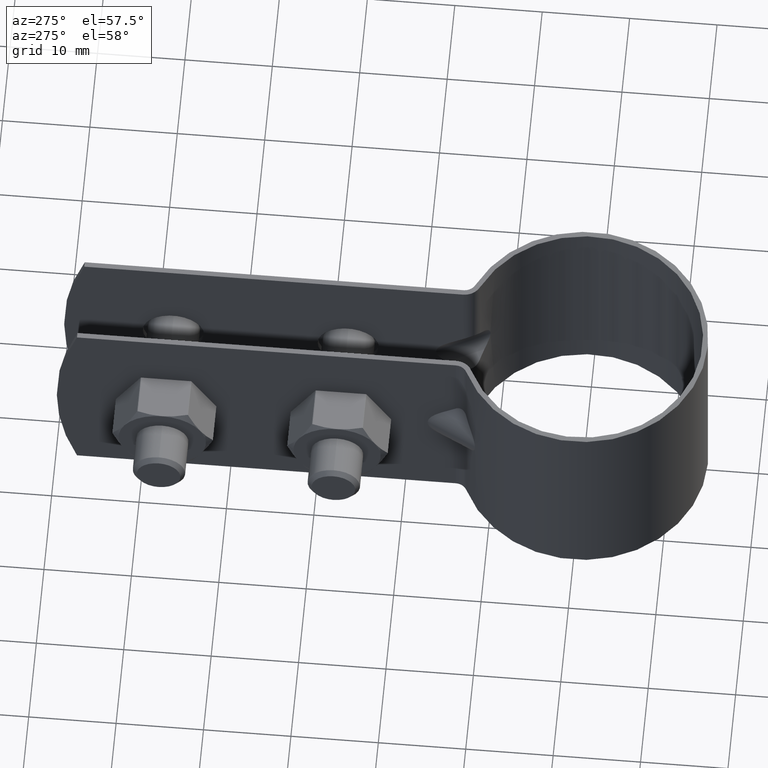
[diagram: clean part render]
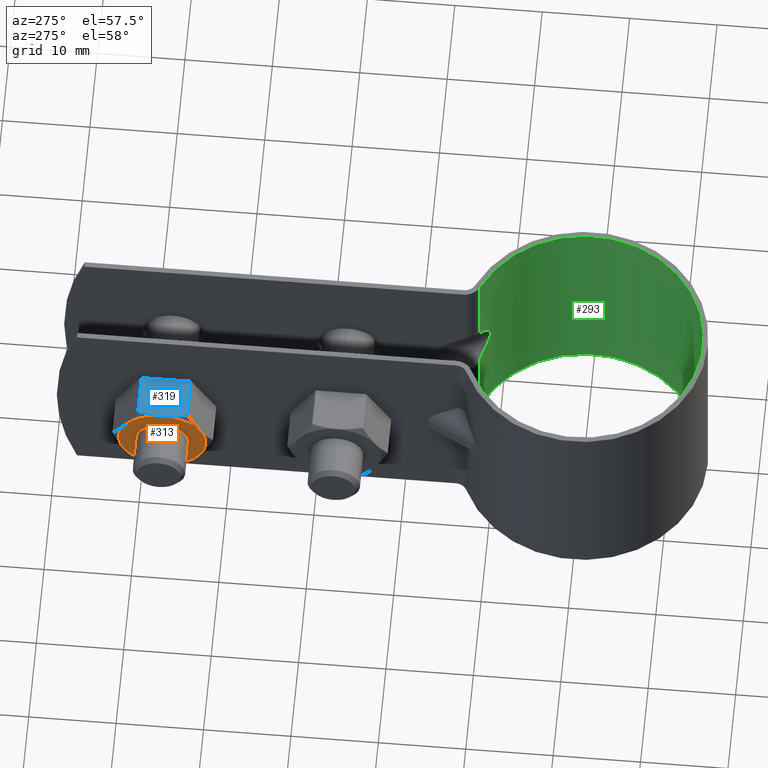
[diagram: same view with three faces highlighted in distinct colors, each labeled with its STEP entity id]
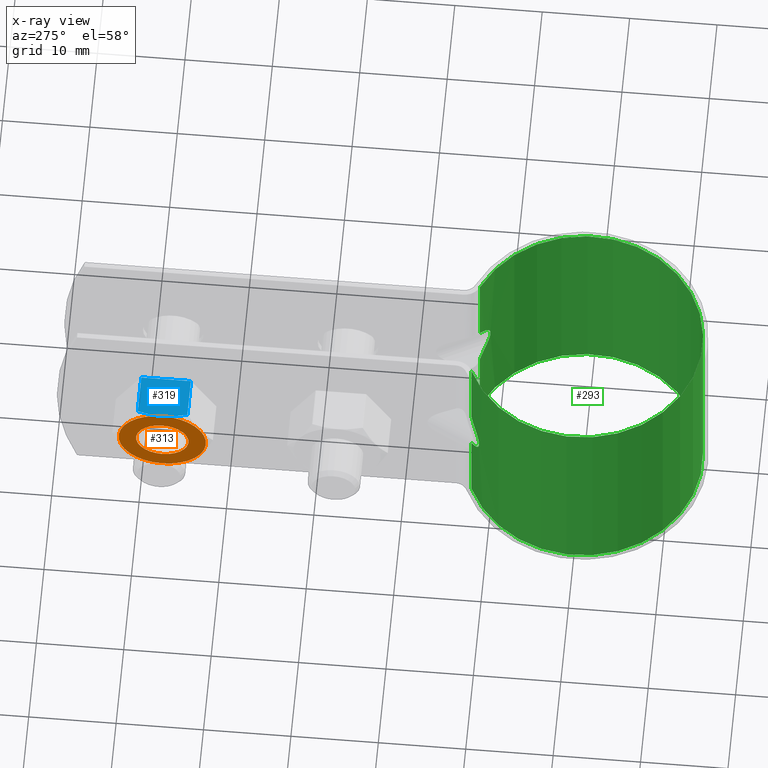
[diagram: x-ray of the same camera — body ghosted, the three highlighted faces saturated]
A machine part, auxiliary view with three faces highlighted in distinct colors.
The next image is the same camera in x-ray (body ghosted, the three faces saturated) — at least one of them is partly hidden behind the body in this view.
Their STEP definitions:

[orange] entity #313 — the highlighted planar face has unit normal (1, 0, 0).
#313 = ADVANCED_FACE( '', ( #477, #478 ), #479, .F. );
#477 = FACE_OUTER_BOUND( '', #709, .T. );
#478 = FACE_BOUND( '', #710, .T. );
#479 = PLANE( '', #711 );
#709 = EDGE_LOOP( '', ( #1202, #1203, #1204, #1205, #1206, #1207 ) );
#710 = EDGE_LOOP( '', ( #1208 ) );
#711 = AXIS2_PLACEMENT_3D( '', #1209, #1210, #1211 );
#1202 = ORIENTED_EDGE( '', *, *, #1733, .F. );
#1203 = ORIENTED_EDGE( '', *, *, #1734, .F. );
#1204 = ORIENTED_EDGE( '', *, *, #1735, .F. );
#1205 = ORIENTED_EDGE( '', *, *, #1736, .F. );
#1206 = ORIENTED_EDGE( '', *, *, #1731, .F. );
#1207 = ORIENTED_EDGE( '', *, *, #1737, .F. );
#1208 = ORIENTED_EDGE( '', *, *, #1738, .T. );
#1209 = CARTESIAN_POINT( '', ( -10.1000000000000, 47.3339393796296, -8.67361737988408E-016 ) );
#1210 = DIRECTION( '', ( 1.00000000000000, 0.000000000000000, 0.000000000000000 ) );
#1211 = DIRECTION( '', ( 0.000000000000000, 0.000000000000000, -1.00000000000000 ) );
#1731 = EDGE_CURVE( '', #2049, #2051, #2052, .T. );
#1733 = EDGE_CURVE( '', #2054, #2055, #2056, .T. );
#1734 = EDGE_CURVE( '', #2057, #2054, #2058, .T. );
#1735 = EDGE_CURVE( '', #2059, #2057, #2060, .T. );
#1736 = EDGE_CURVE( '', #2051, #2059, #2061, .T. );
#1737 = EDGE_CURVE( '', #2055, #2049, #2062, .T. );
#1738 = EDGE_CURVE( '', #2063, #2063, #2064, .T. );
#2049 = VERTEX_POINT( '', #2579 );
#2051 = VERTEX_POINT( '', #2586 );
#2052 = CIRCLE( '', #2587, 5.00000000000000 );
#2054 = VERTEX_POINT( '', #2596 );
#2055 = VERTEX_POINT( '', #2597 );
#2056 = CIRCLE( '', #2598, 5.00000000000000 );
#2057 = VERTEX_POINT( '', #2599 );
#2058 = CIRCLE( '', #2600, 5.00000000000000 );
#2059 = VERTEX_POINT( '', #2601 );
#2060 = CIRCLE( '', #2602, 5.00000000000000 );
#2061 = CIRCLE( '', #2603, 5.00000000000000 );
#2062 = CIRCLE( '', #2604, 5.00000000000000 );
#2063 = VERTEX_POINT( '', #2605 );
#2064 = CIRCLE( '', #2606, 3.00000000000000 );
#2579 = CARTESIAN_POINT( '', ( -10.1000000000000, 47.3339393796296, 5.00000000000000 ) );
#2586 = CARTESIAN_POINT( '', ( -10.1000000000000, 43.0038123607074, 2.50000000000000 ) );
#2587 = AXIS2_PLACEMENT_3D( '', #3164, #3165, #3166 );
#2596 = CARTESIAN_POINT( '', ( -10.1000000000000, 51.6640663985518, -2.50000000000000 ) );
#2597 = CARTESIAN_POINT( '', ( -10.1000000000000, 51.6640663985518, 2.50000000000000 ) );
#2598 = AXIS2_PLACEMENT_3D( '', #3167, #3168, #3169 );
#2599 = CARTESIAN_POINT( '', ( -10.1000000000000, 47.3339393796296, -5.00000000000000 ) );
#2600 = AXIS2_PLACEMENT_3D( '', #3170, #3171, #3172 );
#2601 = CARTESIAN_POINT( '', ( -10.1000000000000, 43.0038123607074, -2.50000000000000 ) );
#2602 = AXIS2_PLACEMENT_3D( '', #3173, #3174, #3175 );
#2603 = AXIS2_PLACEMENT_3D( '', #3176, #3177, #3178 );
#2604 = AXIS2_PLACEMENT_3D( '', #3179, #3180, #3181 );
#2605 = CARTESIAN_POINT( '', ( -10.1000000000000, 47.3339393796296, -3.00000000000000 ) );
#2606 = AXIS2_PLACEMENT_3D( '', #3182, #3183, #3184 );
#3164 = CARTESIAN_POINT( '', ( -10.1000000000000, 47.3339393796296, -8.67361737988408E-016 ) );
#3165 = DIRECTION( '', ( 1.00000000000000, 0.000000000000000, 0.000000000000000 ) );
#3166 = DIRECTION( '', ( 0.000000000000000, 0.000000000000000, -1.00000000000000 ) );
#3167 = CARTESIAN_POINT( '', ( -10.1000000000000, 47.3339393796296, -8.67361737988408E-016 ) );
#3168 = DIRECTION( '', ( 1.00000000000000, 0.000000000000000, 0.000000000000000 ) );
#3169 = DIRECTION( '', ( 0.000000000000000, 0.000000000000000, -1.00000000000000 ) );
#3170 = CARTESIAN_POINT( '', ( -10.1000000000000, 47.3339393796296, -8.67361737988408E-016 ) );
#3171 = DIRECTION( '', ( 1.00000000000000, 0.000000000000000, 0.000000000000000 ) );
#3172 = DIRECTION( '', ( 0.000000000000000, 0.000000000000000, -1.00000000000000 ) );
#3173 = CARTESIAN_POINT( '', ( -10.1000000000000, 47.3339393796296, -8.67361737988408E-016 ) );
#3174 = DIRECTION( '', ( 1.00000000000000, 0.000000000000000, 0.000000000000000 ) );
#3175 = DIRECTION( '', ( 0.000000000000000, 0.000000000000000, -1.00000000000000 ) );
#3176 = CARTESIAN_POINT( '', ( -10.1000000000000, 47.3339393796296, -8.67361737988408E-016 ) );
#3177 = DIRECTION( '', ( 1.00000000000000, 0.000000000000000, 0.000000000000000 ) );
#3178 = DIRECTION( '', ( 0.000000000000000, 0.000000000000000, -1.00000000000000 ) );
#3179 = CARTESIAN_POINT( '', ( -10.1000000000000, 47.3339393796296, -8.67361737988408E-016 ) );
#3180 = DIRECTION( '', ( 1.00000000000000, 0.000000000000000, 0.000000000000000 ) );
#3181 = DIRECTION( '', ( 0.000000000000000, 0.000000000000000, -1.00000000000000 ) );
#3182 = CARTESIAN_POINT( '', ( -10.1000000000000, 47.3339393796296, -8.67361737988408E-016 ) );
#3183 = DIRECTION( '', ( 1.00000000000000, 0.000000000000000, 0.000000000000000 ) );
#3184 = DIRECTION( '', ( 0.000000000000000, 0.000000000000000, -1.00000000000000 ) );

[blue] entity #319 — the highlighted planar face has unit normal (0, 0, -1).
#319 = ADVANCED_FACE( '', ( #491 ), #492, .F. );
#491 = FACE_OUTER_BOUND( '', #723, .T. );
#492 = PLANE( '', #724 );
#723 = EDGE_LOOP( '', ( #1257, #1258, #1259, #1260, #1261 ) );
#724 = AXIS2_PLACEMENT_3D( '', #1262, #1263, #1264 );
#1257 = ORIENTED_EDGE( '', *, *, #1763, .F. );
#1258 = ORIENTED_EDGE( '', *, *, #1730, .F. );
#1259 = ORIENTED_EDGE( '', *, *, #1764, .F. );
#1260 = ORIENTED_EDGE( '', *, *, #1747, .F. );
#1261 = ORIENTED_EDGE( '', *, *, #1758, .F. );
#1262 = CARTESIAN_POINT( '', ( -5.10000000000002, 50.2206907255777, 5.00000000000000 ) );
#1263 = DIRECTION( '', ( 0.000000000000000, 0.000000000000000, -1.00000000000000 ) );
#1264 = DIRECTION( '', ( -1.00000000000000, 0.000000000000000, 0.000000000000000 ) );
#1730 = EDGE_CURVE( '', #2046, #2049, #2050, .T. );
#1747 = EDGE_CURVE( '', #2078, #2080, #2081, .T. );
#1758 = EDGE_CURVE( '', #2099, #2078, #2101, .T. );
#1763 = EDGE_CURVE( '', #2049, #2099, #2108, .T. );
#1764 = EDGE_CURVE( '', #2080, #2046, #2109, .F. );
#2046 = VERTEX_POINT( '', #2576 );
#2049 = VERTEX_POINT( '', #2579 );
#2050 = B_SPLINE_CURVE_WITH_KNOTS( '', 3, ( #2580, #2581, #2582, #2583, #2584, #2585 ), .UNSPECIFIED., .F., .F., ( 4, 2, 4 ), ( 0.00519725619092114, 0.00663292719463914, 0.00806859819835714 ), .UNSPECIFIED. );
#2078 = VERTEX_POINT( '', #2633 );
#2080 = VERTEX_POINT( '', #2635 );
#2081 = LINE( '', #2636, #2637 );
#2099 = VERTEX_POINT( '', #2659 );
#2101 = LINE( '', #2661, #2662 );
#2108 = B_SPLINE_CURVE_WITH_KNOTS( '', 3, ( #2680, #2681, #2682, #2683, #2684, #2685 ), .UNSPECIFIED., .F., .F., ( 4, 2, 4 ), ( 0.00806859819835714, 0.00950497228174471, 0.0109413463651323 ), .UNSPECIFIED. );
#2109 = LINE( '', #2686, #2687 );
#2576 = CARTESIAN_POINT( '', ( -9.66698729810780, 44.4944852067294, 5.00000000000000 ) );
#2579 = CARTESIAN_POINT( '', ( -10.1000000000000, 47.3339393796296, 5.00000000000000 ) );
#2580 = CARTESIAN_POINT( '', ( -9.66698729810781, 44.4944852067294, 5.00000000000000 ) );
#2581 = CARTESIAN_POINT( '', ( -9.79876289079438, 44.9566837649864, 5.00000000000000 ) );
#2582 = CARTESIAN_POINT( '', ( -9.90898038823823, 45.4298194141142, 5.00000000000000 ) );
#2583 = CARTESIAN_POINT( '', ( -10.0594851340825, 46.3777421907105, 5.00000000000000 ) );
#2584 = CARTESIAN_POINT( '', ( -10.1000000000000, 46.8543168417580, 5.00000000000000 ) );
#2585 = CARTESIAN_POINT( '', ( -10.1000000000000, 47.3339393796296, 5.00000000000000 ) );
#2633 = CARTESIAN_POINT( '', ( -5.10000000000002, 50.1733935525297, 5.00000000000000 ) );
#2635 = CARTESIAN_POINT( '', ( -5.10000000000002, 44.4944852067294, 5.00000000000000 ) );
#2636 = CARTESIAN_POINT( '', ( -5.10000000000002, 53.0839393796296, 5.00000000000000 ) );
#2637 = VECTOR( '', #3197, 1000.00000000000 );
#2659 = CARTESIAN_POINT( '', ( -9.66698729810780, 50.1733935525297, 5.00000000000000 ) );
#2661 = CARTESIAN_POINT( '', ( -5.10000000000002, 50.1733935525297, 5.00000000000000 ) );
#2662 = VECTOR( '', #3220, 1000.00000000000 );
#2680 = CARTESIAN_POINT( '', ( -10.1000000000000, 47.3339393796296, 5.00000000000000 ) );
#2681 = CARTESIAN_POINT( '', ( -10.1000000000000, 47.8137967992077, 5.00000000000000 ) );
#2682 = CARTESIAN_POINT( '', ( -10.0583898630217, 48.3001786176977, 5.00000000000000 ) );
#2683 = CARTESIAN_POINT( '', ( -9.90676947593068, 49.2487710432568, 5.00000000000000 ) );
#2684 = CARTESIAN_POINT( '', ( -9.79793774197780, 49.7140891766141, 5.00000000000000 ) );
#2685 = CARTESIAN_POINT( '', ( -9.66698729810781, 50.1733935525297, 5.00000000000000 ) );
#2686 = CARTESIAN_POINT( '', ( -5.10000000000002, 44.4944852067294, 5.00000000000000 ) );
#2687 = VECTOR( '', #3225, 1000.00000000000 );
#3197 = DIRECTION( '', ( 0.000000000000000, -1.00000000000000, 0.000000000000000 ) );
#3220 = DIRECTION( '', ( 1.00000000000000, 0.000000000000000, 0.000000000000000 ) );
#3225 = DIRECTION( '', ( 1.00000000000000, 0.000000000000000, 0.000000000000000 ) );

[green] entity #293 — the highlighted cylindrical surface (partial cylindrical patch) has radius 13.6 mm, axis along (0, 0, -1).
#293 = ADVANCED_FACE( '', ( #432 ), #433, .F. );
#432 = FACE_OUTER_BOUND( '', #664, .T. );
#433 = CYLINDRICAL_SURFACE( '', #665, 13.6000000000000 );
#664 = EDGE_LOOP( '', ( #1042, #1043, #1044, #1045, #1046, #1047, #1048, #1049, #1050, #1051, #1052, #1053 ) );
#665 = AXIS2_PLACEMENT_3D( '', #1054, #1055, #1056 );
#1042 = ORIENTED_EDGE( '', *, *, #1658, .F. );
#1043 = ORIENTED_EDGE( '', *, *, #1619, .F. );
#1044 = ORIENTED_EDGE( '', *, *, #1629, .F. );
#1045 = ORIENTED_EDGE( '', *, *, #1699, .T. );
#1046 = ORIENTED_EDGE( '', *, *, #1668, .T. );
#1047 = ORIENTED_EDGE( '', *, *, #1671, .T. );
#1048 = ORIENTED_EDGE( '', *, *, #1663, .T. );
#1049 = ORIENTED_EDGE( '', *, *, #1700, .T. );
#1050 = ORIENTED_EDGE( '', *, *, #1701, .T. );
#1051 = ORIENTED_EDGE( '', *, *, #1697, .F. );
#1052 = ORIENTED_EDGE( '', *, *, #1655, .F. );
#1053 = ORIENTED_EDGE( '', *, *, #1661, .F. );
#1054 = CARTESIAN_POINT( '', ( 0.000000000000000, 0.000000000000000, -12.5000000000000 ) );
#1055 = DIRECTION( '', ( 0.000000000000000, 0.000000000000000, -1.00000000000000 ) );
#1056 = DIRECTION( '', ( -1.00000000000000, 6.06692130572647E-017, 0.000000000000000 ) );
#1619 = EDGE_CURVE( '', #1859, #1855, #1861, .T. );
#1629 = EDGE_CURVE( '', #1879, #1859, #1881, .T. );
#1655 = EDGE_CURVE( '', #1923, #1926, #1927, .F. );
#1658 = EDGE_CURVE( '', #1855, #1931, #1932, .F. );
#1661 = EDGE_CURVE( '', #1931, #1923, #1936, .T. );
#1663 = EDGE_CURVE( '', #1938, #1939, #1940, .F. );
#1668 = EDGE_CURVE( '', #1949, #1946, #1950, .F. );
#1671 = EDGE_CURVE( '', #1946, #1938, #1954, .T. );
#1697 = EDGE_CURVE( '', #1926, #1996, #1997, .T. );
#1699 = EDGE_CURVE( '', #1879, #1949, #1999, .T. );
#1700 = EDGE_CURVE( '', #1939, #2000, #2001, .T. );
#1701 = EDGE_CURVE( '', #2000, #1996, #2002, .T. );
#1855 = VERTEX_POINT( '', #2255 );
#1859 = VERTEX_POINT( '', #2260 );
#1861 = LINE( '', #2262, #2263 );
#1879 = VERTEX_POINT( '', #2286 );
#1881 = CIRCLE( '', #2288, 13.6000000000000 );
#1923 = VERTEX_POINT( '', #2376 );
#1926 = VERTEX_POINT( '', #2380 );
#1927 = ELLIPSE( '', #2381, 23.7108764204469, 13.6000000000000 );
#1931 = VERTEX_POINT( '', #2386 );
#1932 = ELLIPSE( '', #2387, 23.7108764204469, 13.6000000000000 );
#1936 = B_SPLINE_CURVE_WITH_KNOTS( '', 3, ( #2393, #2394, #2395, #2396, #2397, #2398, #2399, #2400, #2401, #2402, #2403, #2404, #2405, #2406, #2407, #2408, #2409, #2410 ), .UNSPECIFIED., .F., .F., ( 4, 2, 2, 2, 2, 2, 2, 2, 4 ), ( 1.46700206458118E-017, 0.000584896420978064, 0.00116979284195611, 0.00175468926293416, 0.00233958568391221, 0.00292448210489026, 0.00350937852586831, 0.00409427494684636, 0.00467917136782441 ), .UNSPECIFIED. );
#1938 = VERTEX_POINT( '', #2412 );
#1939 = VERTEX_POINT( '', #2413 );
#1940 = ELLIPSE( '', #2414, 23.7108764204469, 13.6000000000000 );
#1946 = VERTEX_POINT( '', #2422 );
#1949 = VERTEX_POINT( '', #2426 );
#1950 = ELLIPSE( '', #2427, 23.7108764204469, 13.6000000000000 );
#1954 = B_SPLINE_CURVE_WITH_KNOTS( '', 3, ( #2432, #2433, #2434, #2435, #2436, #2437, #2438, #2439, #2440, #2441, #2442, #2443, #2444, #2445, #2446, #2447, #2448, #2449 ), .UNSPECIFIED., .F., .F., ( 4, 2, 2, 2, 2, 2, 2, 2, 4 ), ( 1.46700206458118E-017, 0.000584896420978064, 0.00116979284195611, 0.00175468926293416, 0.00233958568391221, 0.00292448210489026, 0.00350937852586831, 0.00409427494684636, 0.00467917136782441 ), .UNSPECIFIED. );
#1996 = VERTEX_POINT( '', #2501 );
#1997 = LINE( '', #2502, #2503 );
#1999 = LINE( '', #2505, #2506 );
#2000 = VERTEX_POINT( '', #2507 );
#2001 = LINE( '', #2508, #2509 );
#2002 = CIRCLE( '', #2510, 13.6000000000000 );
#2255 = CARTESIAN_POINT( '', ( 5.66666666666667, 12.3632070632538, -2.77308587638104 ) );
#2260 = CARTESIAN_POINT( '', ( 5.66666666666666, 12.3632070632538, -12.5000000000000 ) );
#2262 = CARTESIAN_POINT( '', ( 5.66666666666666, 12.3632070632538, -12.5000000000000 ) );
#2263 = VECTOR( '', #2965, 1000.00000000000 );
#2286 = CARTESIAN_POINT( '', ( -5.66666666666667, 12.3632070632538, -12.5000000000000 ) );
#2288 = AXIS2_PLACEMENT_3D( '', #2983, #2984, #2985 );
#2376 = CARTESIAN_POINT( '', ( 6.53586213185873, 11.9265462810210, 1.95015988359353 ) );
#2380 = CARTESIAN_POINT( '', ( 5.66666666666666, 12.3632070632538, 2.77308587638101 ) );
#2381 = AXIS2_PLACEMENT_3D( '', #3029, #3030, #3031 );
#2386 = CARTESIAN_POINT( '', ( 6.53586213185867, 11.9265462810210, -1.95015988359359 ) );
#2387 = AXIS2_PLACEMENT_3D( '', #3036, #3037, #3038 );
#2393 = CARTESIAN_POINT( '', ( 6.53586213185871, 11.9265462810210, -1.95015988359361 ) );
#2394 = CARTESIAN_POINT( '', ( 6.67009651833289, 11.8529845454877, -1.82704297847877 ) );
#2395 = CARTESIAN_POINT( '', ( 6.79610177893152, 11.7809680969336, -1.69624043476567 ) );
#2396 = CARTESIAN_POINT( '', ( 7.02852298233976, 11.6437997826004, -1.41477434183330 ) );
#2397 = CARTESIAN_POINT( '', ( 7.13580033444201, 11.5780897281714, -1.26288260901856 ) );
#2398 = CARTESIAN_POINT( '', ( 7.31989769528371, 11.4625872252817, -0.936381958474869 ) );
#2399 = CARTESIAN_POINT( '', ( 7.39605316070714, 11.4132633302297, -0.763664600269284 ) );
#2400 = CARTESIAN_POINT( '', ( 7.50425963487865, 11.3424102171233, -0.390706598991286 ) );
#2401 = CARTESIAN_POINT( '', ( 7.53357038606242, 11.3227786890182, -0.198021643271265 ) );
#2402 = CARTESIAN_POINT( '', ( 7.53364921555405, 11.3227262397014, 0.197222903658054 ) );
#2403 = CARTESIAN_POINT( '', ( 7.50440397800629, 11.3423144164811, 0.389995176648634 ) );
#2404 = CARTESIAN_POINT( '', ( 7.39628686221077, 11.4131115844593, 0.763072260344447 ) );
#2405 = CARTESIAN_POINT( '', ( 7.31996323132782, 11.4625405341955, 0.936125778861990 ) );
#2406 = CARTESIAN_POINT( '', ( 7.13673789240971, 11.5775070486314, 1.26135901593015 ) );
#2407 = CARTESIAN_POINT( '', ( 7.02914109822047, 11.6434296857302, 1.41397552560190 ) );
#2408 = CARTESIAN_POINT( '', ( 6.79627352742367, 11.7808720205966, 1.69608254140717 ) );
#2409 = CARTESIAN_POINT( '', ( 6.67012729640709, 11.8529676788069, 1.82701474948806 ) );
#2410 = CARTESIAN_POINT( '', ( 6.53586213185873, 11.9265462810210, 1.95015988359353 ) );
#2412 = CARTESIAN_POINT( '', ( -6.53586213185873, 11.9265462810210, 1.95015988359353 ) );
#2413 = CARTESIAN_POINT( '', ( -5.66666666666667, 12.3632070632538, 2.77308587638100 ) );
#2414 = AXIS2_PLACEMENT_3D( '', #3044, #3045, #3046 );
#2422 = CARTESIAN_POINT( '', ( -6.53586213185867, 11.9265462810210, -1.95015988359359 ) );
#2426 = CARTESIAN_POINT( '', ( -5.66666666666667, 12.3632070632538, -2.77308587638104 ) );
#2427 = AXIS2_PLACEMENT_3D( '', #3053, #3054, #3055 );
#2432 = CARTESIAN_POINT( '', ( -6.53586213185871, 11.9265462810210, -1.95015988359361 ) );
#2433 = CARTESIAN_POINT( '', ( -6.67009651833289, 11.8529845454877, -1.82704297847877 ) );
#2434 = CARTESIAN_POINT( '', ( -6.79610177893152, 11.7809680969336, -1.69624043476567 ) );
#2435 = CARTESIAN_POINT( '', ( -7.02852298233976, 11.6437997826004, -1.41477434183330 ) );
#2436 = CARTESIAN_POINT( '', ( -7.13580033444201, 11.5780897281714, -1.26288260901856 ) );
#2437 = CARTESIAN_POINT( '', ( -7.31989769528371, 11.4625872252817, -0.936381958474869 ) );
#2438 = CARTESIAN_POINT( '', ( -7.39605316070714, 11.4132633302297, -0.763664600269284 ) );
#2439 = CARTESIAN_POINT( '', ( -7.50425963487865, 11.3424102171233, -0.390706598991286 ) );
#2440 = CARTESIAN_POINT( '', ( -7.53357038606242, 11.3227786890182, -0.198021643271265 ) );
#2441 = CARTESIAN_POINT( '', ( -7.53364921555405, 11.3227262397014, 0.197222903658054 ) );
#2442 = CARTESIAN_POINT( '', ( -7.50440397800629, 11.3423144164811, 0.389995176648634 ) );
#2443 = CARTESIAN_POINT( '', ( -7.39628686221077, 11.4131115844593, 0.763072260344447 ) );
#2444 = CARTESIAN_POINT( '', ( -7.31996323132782, 11.4625405341955, 0.936125778861990 ) );
#2445 = CARTESIAN_POINT( '', ( -7.13673789240971, 11.5775070486314, 1.26135901593015 ) );
#2446 = CARTESIAN_POINT( '', ( -7.02914109822047, 11.6434296857302, 1.41397552560190 ) );
#2447 = CARTESIAN_POINT( '', ( -6.79627352742367, 11.7808720205966, 1.69608254140717 ) );
#2448 = CARTESIAN_POINT( '', ( -6.67012729640709, 11.8529676788069, 1.82701474948806 ) );
#2449 = CARTESIAN_POINT( '', ( -6.53586213185873, 11.9265462810210, 1.95015988359353 ) );
#2501 = CARTESIAN_POINT( '', ( 5.66666666666666, 12.3632070632538, 12.5000000000000 ) );
#2502 = CARTESIAN_POINT( '', ( 5.66666666666666, 12.3632070632538, -12.5000000000000 ) );
#2503 = VECTOR( '', #3115, 1000.00000000000 );
#2505 = CARTESIAN_POINT( '', ( -5.66666666666667, 12.3632070632538, -12.5000000000000 ) );
#2506 = VECTOR( '', #3119, 1000.00000000000 );
#2507 = CARTESIAN_POINT( '', ( -5.66666666666667, 12.3632070632538, 12.5000000000000 ) );
#2508 = CARTESIAN_POINT( '', ( -5.66666666666667, 12.3632070632538, -12.5000000000000 ) );
#2509 = VECTOR( '', #3120, 1000.00000000000 );
#2510 = AXIS2_PLACEMENT_3D( '', #3121, #3122, #3123 );
#2965 = DIRECTION( '', ( 0.000000000000000, 0.000000000000000, 1.00000000000000 ) );
#2983 = CARTESIAN_POINT( '', ( 0.000000000000000, 0.000000000000000, -12.5000000000000 ) );
#2984 = DIRECTION( '', ( 0.000000000000000, 0.000000000000000, 1.00000000000000 ) );
#2985 = DIRECTION( '', ( 1.00000000000000, -6.06692130572647E-017, 0.000000000000000 ) );
#3029 = CARTESIAN_POINT( '', ( 0.000000000000000, 0.000000000000000, 17.9997364644209 ) );
#3030 = DIRECTION( '', ( -0.729869815763731, -0.371887245949431, -0.573576436351046 ) );
#3031 = DIRECTION( '', ( -0.511060346909496, -0.260398252977840, 0.819152044288992 ) );
#3036 = CARTESIAN_POINT( '', ( 0.000000000000000, 0.000000000000000, -17.9997364644209 ) );
#3037 = DIRECTION( '', ( -0.729869815763730, -0.371887245949432, 0.573576436351046 ) );
#3038 = DIRECTION( '', ( 0.511060346909496, 0.260398252977841, 0.819152044288992 ) );
#3044 = CARTESIAN_POINT( '', ( 0.000000000000000, 0.000000000000000, 17.9997364644209 ) );
#3045 = DIRECTION( '', ( -0.729869815763731, 0.371887245949431, 0.573576436351046 ) );
#3046 = DIRECTION( '', ( 0.511060346909496, -0.260398252977840, 0.819152044288992 ) );
#3053 = CARTESIAN_POINT( '', ( 0.000000000000000, 0.000000000000000, -17.9997364644209 ) );
#3054 = DIRECTION( '', ( -0.729869815763730, 0.371887245949432, -0.573576436351046 ) );
#3055 = DIRECTION( '', ( -0.511060346909496, 0.260398252977841, 0.819152044288992 ) );
#3115 = DIRECTION( '', ( 0.000000000000000, 0.000000000000000, 1.00000000000000 ) );
#3119 = DIRECTION( '', ( 0.000000000000000, 0.000000000000000, 1.00000000000000 ) );
#3120 = DIRECTION( '', ( 0.000000000000000, 0.000000000000000, 1.00000000000000 ) );
#3121 = CARTESIAN_POINT( '', ( 0.000000000000000, 0.000000000000000, 12.5000000000000 ) );
#3122 = DIRECTION( '', ( 0.000000000000000, 0.000000000000000, 1.00000000000000 ) );
#3123 = DIRECTION( '', ( 1.00000000000000, -6.06692130572647E-017, 0.000000000000000 ) );